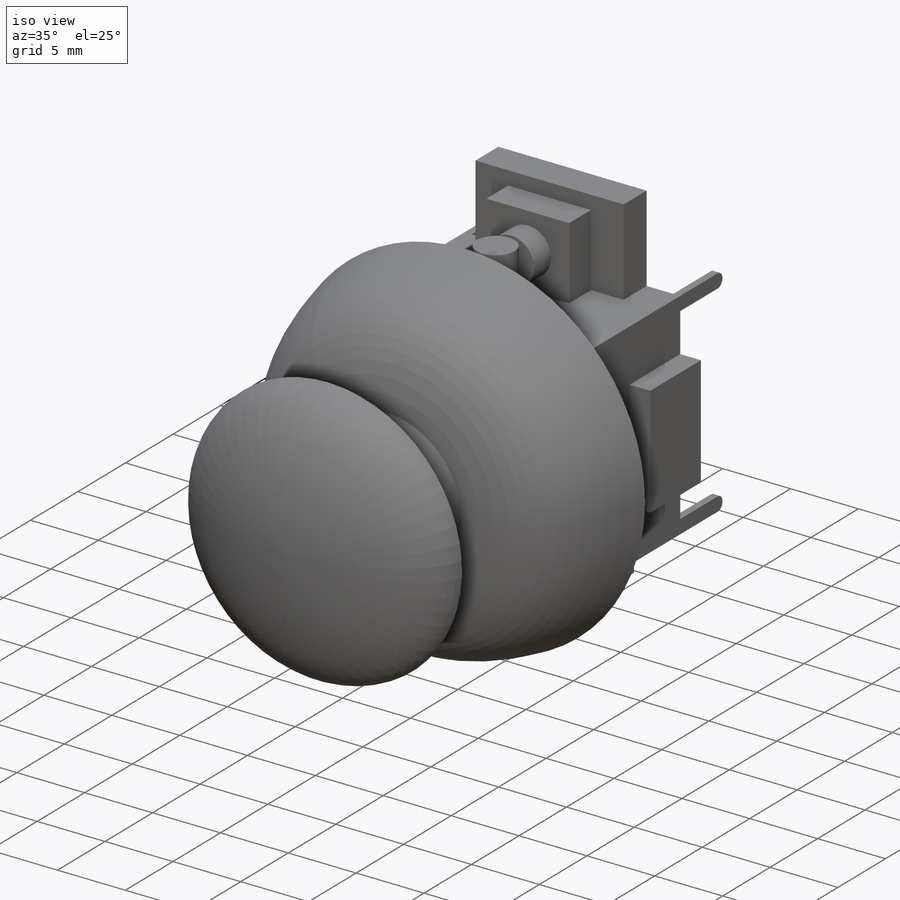
[diagram: iso view]
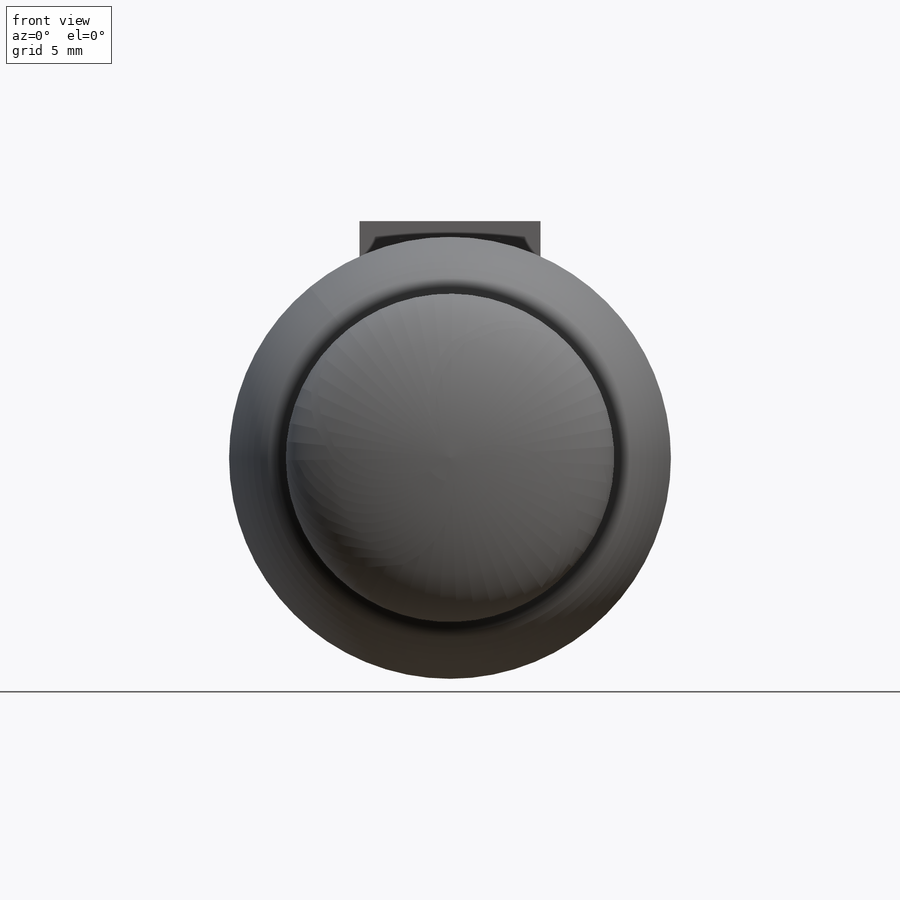
[diagram: front view]
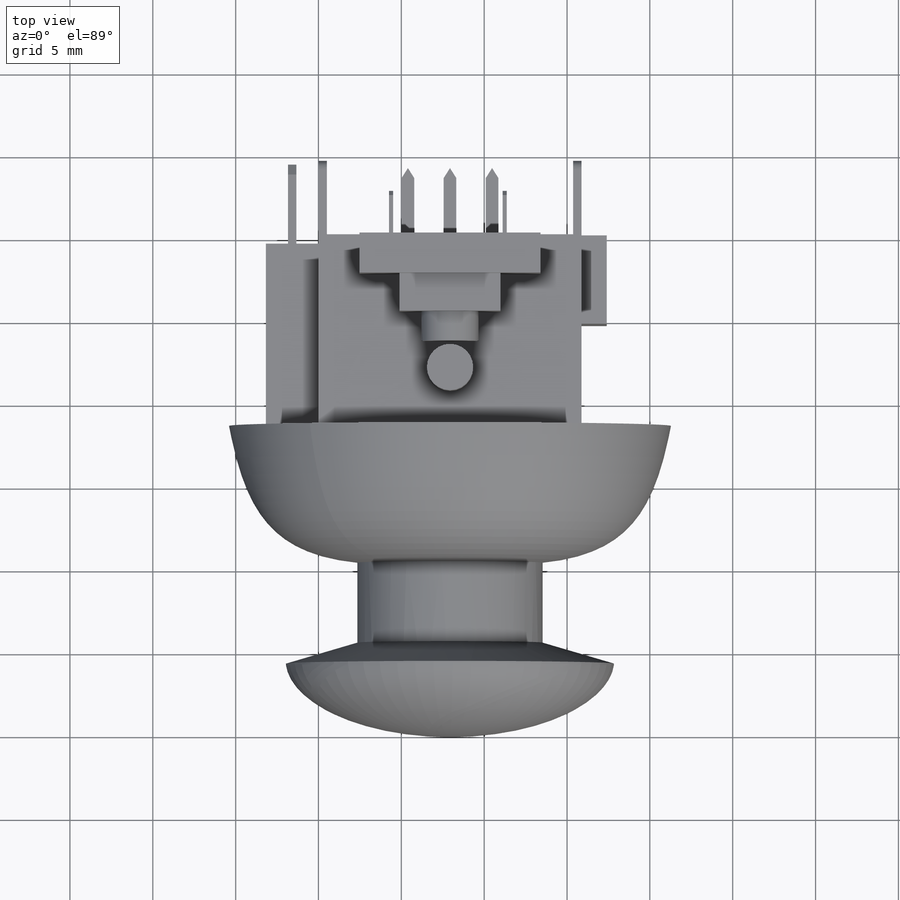
[diagram: top view]
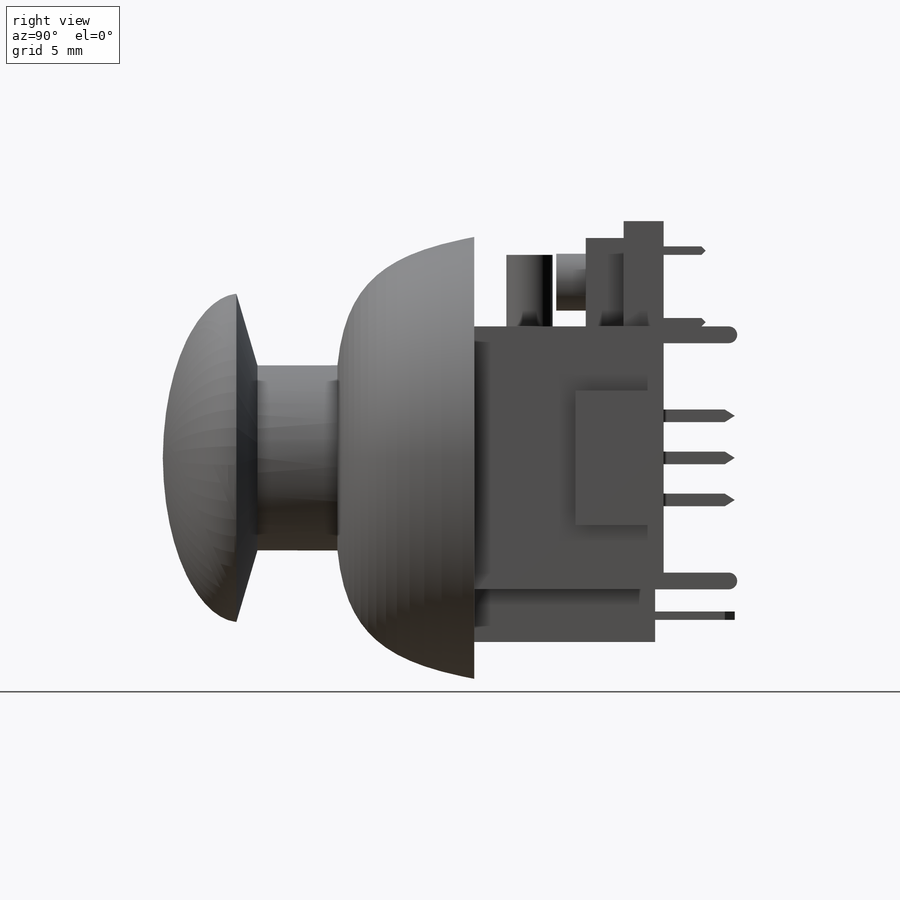
[diagram: right view]
SOLIDWORKS PART (.sldprt)
format: sldprt  version: not decoded by parser v0  size: 681,472 bytes
history: native  units: mm
features: sketch x16, extrude x11, plane x4, cut_extrude x2, material x1, revolve x1, fillet x1, chamfer x1 (+13 scaffold rows collapsed)
feature tree (50):
  scaffold x13  (default folders/planes/origin — collapsed)
  material  "Material <not specified>"
  sketch  "Sketch1"  dims[D1=15.875mm]
  extrude  "Boss-Extrude1"  Depth=11.938mm
  sketch  "Sketch2"  dims[D1=10.922mm D2=6.35mm]
  extrude  "Boss-Extrude2"  Depth=2.413mm
  sketch  "Sketch3"  dims[D1=8.128mm D2=5.334mm]
  extrude  "Boss-Extrude3"  Depth=1.524mm
  sketch  "Sketch4"  dims[D1=6.096mm D2=5.334mm]
  extrude  "Boss-Extrude4"  Depth=2.286mm
  sketch  "Sketch5"  dims[D1=3.429mm]
  extrude  "Boss-Extrude5"  Depth=1.778mm
  sketch  "Sketch6"  dims[D1=2.794mm]
  extrude  "Boss-Extrude6"  Depth=4.318mm
  sketch  "Sketch7"  dims[D1=9.779mm D2=11.43mm]
  extrude  "Boss-Extrude7"  Depth=3.175mm
  sketch  "Sketch8"  dims[D1=9.779mm D2=11.43mm]
  extrude  "Boss-Extrude8"  Depth=3.175mm
  sketch  "Sketch9"  dims[c1.D2=9.144mm c1.D3=6.096mm c1.D4=4.826mm c1.D5=3.683mm c1.D1=5.08mm c1.D8=1.524mm c1.D6=0.762mm c1.D7=0.762mm c2.D6=4.0]
  cut_extrude  "Cut-Extrude1"  Depth=0.508mm
  sketch  "Sketch10"  dims[D1=4.826mm]
  cut_extrude  "Cut-Extrude2"  Depth=0.508mm
  plane  "Plane3"
  plane  "Plane4"
  sketch  "Sketch11"  dims[D1=11.43mm D2=13.335mm D3=18.796mm D4=8.255mm D5=3.1115mm D6=5.588mm D7=4.826mm D9=9.906mm D10=1.27mm D8=0.508mm]
  revolve  "Revolve1"  Angle=360deg
  sketch  "Sketch12"  dims[c1.D1=4.445mm c1.D2=0.508mm c2.D1=1.016mm c2.D5=0.508mm c2.D6=1.0mm c2.D7=5.0mm]
  sketch  "Sketch13"  dims[D1=1.016mm D5=0.508mm D6=1.0mm D7=5.0mm]
  fillet  "Fillet1"  Radius=0.508mm
  plane  "Plane5"  Offset=1.5875mm
  plane  "Plane6"  Offset=1.5875mm
  sketch  "Sketch14"  dims[D1=2.54mm D2=2.54mm D3=0.381mm D4=0.381mm]
  extrude  "Boss-Extrude9"  Depth=0.508mm
  sketch  "Sketch15"  dims[D1=2.0 D2=2.0]
  extrude  "Boss-Extrude10"  Depth=0.508mm
  sketch  "Sketch16"  dims[D1=2.032mm D2=1.524mm D3=0.254mm D4=0.508mm D5=2.0 D6=2.0]
  extrude  "Boss-Extrude11"  Depth=2.54mm
  chamfer  "Chamfer1"  Distance=0.254mm Angle=45deg
decode coverage: 32 of 32 modeling features carry decoded parameters
note: suppression state not decoded; provenance and decode notes live in map.json
